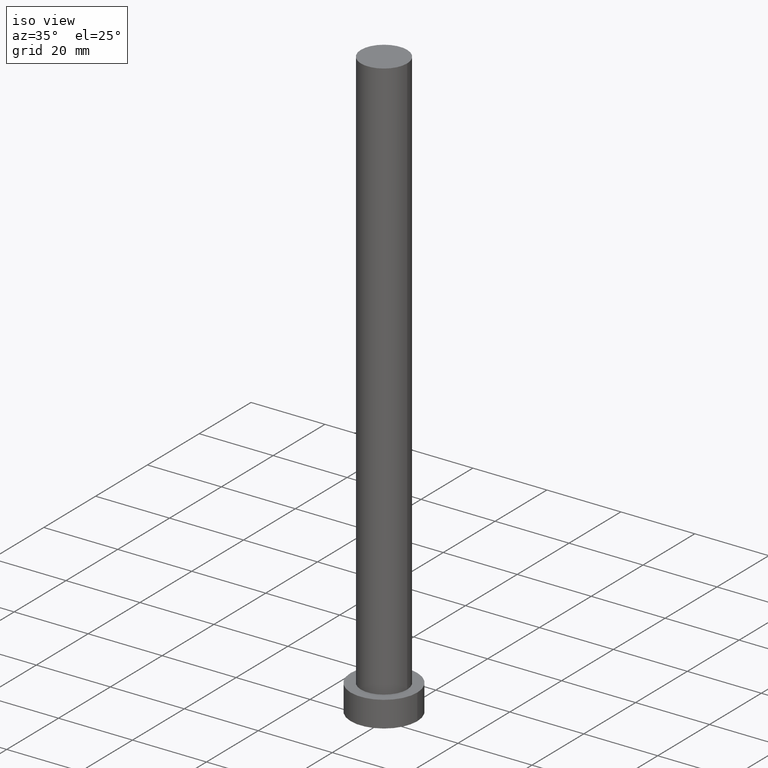
[diagram: clean part render]
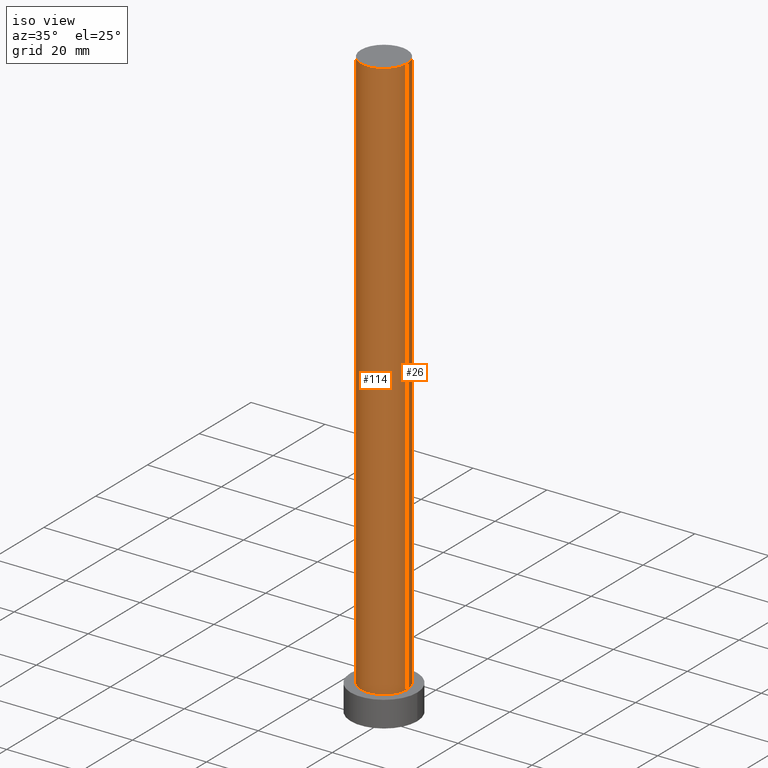
[diagram: same view with one multi-face feature highlighted, each face labeled with its STEP entity id]
A machine part, iso view. The highlighted faces form ONE feature: a constant-radius fillet chain: 2 tangent blend faces with common blend radius 6.25 mm. The faces share edges in the B-rep.
Their STEP definitions:
[1] entity #114 (Cylinder):
#27 = EDGE_CURVE ( 'NONE', #183, #52, #145, .T. ) ;
#28 = LINE ( 'NONE', #227, #153 ) ;
#29 = AXIS2_PLACEMENT_3D ( 'NONE', #182, #207, #106 ) ;
#33 = DIRECTION ( 'NONE',  ( -0.000000000000000000, -0.000000000000000000, -1.000000000000000000 ) ) ;
#37 = EDGE_CURVE ( 'NONE', #230, #211, #136, .T. ) ;
#52 = VERTEX_POINT ( 'NONE', #244 ) ;
#59 = FACE_OUTER_BOUND ( 'NONE', #245, .T. ) ;
#62 = DIRECTION ( 'NONE',  ( 0.000000000000000000, 0.000000000000000000, 1.000000000000000000 ) ) ;
#66 = ORIENTED_EDGE ( 'NONE', *, *, #223, .T. ) ;
#100 = CARTESIAN_POINT ( 'NONE',  ( -6.250000000000000000, 0.000000000000000000, 160.0000000000000000 ) ) ;
#106 = DIRECTION ( 'NONE',  ( 1.000000000000000000, 0.000000000000000000, 0.000000000000000000 ) ) ;
#107 = ORIENTED_EDGE ( 'NONE', *, *, #37, .T. ) ;
#114 = ADVANCED_FACE ( 'NONE', ( #59 ), #187, .T. ) ;
#124 = DIRECTION ( 'NONE',  ( 1.000000000000000000, 0.000000000000000000, 0.000000000000000000 ) ) ;
#126 = DIRECTION ( 'NONE',  ( -1.000000000000000000, 0.000000000000000000, 0.000000000000000000 ) ) ;
#132 = AXIS2_PLACEMENT_3D ( 'NONE', #212, #62, #124 ) ;
#133 = CARTESIAN_POINT ( 'NONE',  ( 6.250000000000000000, 7.654042494670957606E-16, 7.000000000000000000 ) ) ;
#136 = CIRCLE ( 'NONE', #29, 6.250000000000000000 ) ;
#139 = CARTESIAN_POINT ( 'NONE',  ( 0.000000000000000000, 0.000000000000000000, 160.0000000000000000 ) ) ;
#145 = CIRCLE ( 'NONE', #132, 6.250000000000000000 ) ;
#153 = VECTOR ( 'NONE', #33, 1000.000000000000000 ) ;
#154 = AXIS2_PLACEMENT_3D ( 'NONE', #139, #177, #126 ) ;
#156 = VECTOR ( 'NONE', #181, 1000.000000000000000 ) ;
#162 = ORIENTED_EDGE ( 'NONE', *, *, #27, .F. ) ;
#177 = DIRECTION ( 'NONE',  ( -0.000000000000000000, -0.000000000000000000, -1.000000000000000000 ) ) ;
#181 = DIRECTION ( 'NONE',  ( -0.000000000000000000, -0.000000000000000000, -1.000000000000000000 ) ) ;
#182 = CARTESIAN_POINT ( 'NONE',  ( 0.000000000000000000, 0.000000000000000000, 7.000000000000000000 ) ) ;
#183 = VERTEX_POINT ( 'NONE', #195 ) ;
#187 = CYLINDRICAL_SURFACE ( 'NONE', #154, 6.250000000000000000 ) ;
#195 = CARTESIAN_POINT ( 'NONE',  ( -6.250000000000000000, 0.000000000000000000, 160.0000000000000000 ) ) ;
#207 = DIRECTION ( 'NONE',  ( 0.000000000000000000, 0.000000000000000000, 1.000000000000000000 ) ) ;
#211 = VERTEX_POINT ( 'NONE', #133 ) ;
#212 = CARTESIAN_POINT ( 'NONE',  ( 0.000000000000000000, 0.000000000000000000, 160.0000000000000000 ) ) ;
#223 = EDGE_CURVE ( 'NONE', #183, #230, #246, .T. ) ;
#227 = CARTESIAN_POINT ( 'NONE',  ( 6.250000000000000000, 7.654042494670957606E-16, 160.0000000000000000 ) ) ;
#230 = VERTEX_POINT ( 'NONE', #248 ) ;
#233 = EDGE_CURVE ( 'NONE', #52, #211, #28, .T. ) ;
#244 = CARTESIAN_POINT ( 'NONE',  ( 6.250000000000000000, 7.654042494670957606E-16, 160.0000000000000000 ) ) ;
#245 = EDGE_LOOP ( 'NONE', ( #250, #162, #66, #107 ) ) ;
#246 = LINE ( 'NONE', #100, #156 ) ;
#248 = CARTESIAN_POINT ( 'NONE',  ( -6.250000000000000000, 0.000000000000000000, 7.000000000000000000 ) ) ;
#250 = ORIENTED_EDGE ( 'NONE', *, *, #233, .F. ) ;
[2] entity #26 (Cylinder):
#1 = EDGE_CURVE ( 'NONE', #211, #230, #2, .T. ) ;
#2 = CIRCLE ( 'NONE', #23, 6.250000000000000000 ) ;
#21 = CARTESIAN_POINT ( 'NONE',  ( 0.000000000000000000, 0.000000000000000000, 160.0000000000000000 ) ) ;
#23 = AXIS2_PLACEMENT_3D ( 'NONE', #236, #41, #191 ) ;
#24 = EDGE_LOOP ( 'NONE', ( #251, #68, #54, #80 ) ) ;
#26 = ADVANCED_FACE ( 'NONE', ( #111 ), #232, .T. ) ;
#28 = LINE ( 'NONE', #227, #153 ) ;
#33 = DIRECTION ( 'NONE',  ( -0.000000000000000000, -0.000000000000000000, -1.000000000000000000 ) ) ;
#40 = AXIS2_PLACEMENT_3D ( 'NONE', #152, #42, #56 ) ;
#41 = DIRECTION ( 'NONE',  ( 0.000000000000000000, 0.000000000000000000, 1.000000000000000000 ) ) ;
#42 = DIRECTION ( 'NONE',  ( 0.000000000000000000, 0.000000000000000000, 1.000000000000000000 ) ) ;
#52 = VERTEX_POINT ( 'NONE', #244 ) ;
#54 = ORIENTED_EDGE ( 'NONE', *, *, #1, .T. ) ;
#56 = DIRECTION ( 'NONE',  ( 1.000000000000000000, 0.000000000000000000, 0.000000000000000000 ) ) ;
#68 = ORIENTED_EDGE ( 'NONE', *, *, #233, .T. ) ;
#80 = ORIENTED_EDGE ( 'NONE', *, *, #223, .F. ) ;
#92 = AXIS2_PLACEMENT_3D ( 'NONE', #21, #96, #240 ) ;
#96 = DIRECTION ( 'NONE',  ( -0.000000000000000000, -0.000000000000000000, -1.000000000000000000 ) ) ;
#100 = CARTESIAN_POINT ( 'NONE',  ( -6.250000000000000000, 0.000000000000000000, 160.0000000000000000 ) ) ;
#111 = FACE_OUTER_BOUND ( 'NONE', #24, .T. ) ;
#113 = CIRCLE ( 'NONE', #40, 6.250000000000000000 ) ;
#133 = CARTESIAN_POINT ( 'NONE',  ( 6.250000000000000000, 7.654042494670957606E-16, 7.000000000000000000 ) ) ;
#152 = CARTESIAN_POINT ( 'NONE',  ( 0.000000000000000000, 0.000000000000000000, 160.0000000000000000 ) ) ;
#153 = VECTOR ( 'NONE', #33, 1000.000000000000000 ) ;
#156 = VECTOR ( 'NONE', #181, 1000.000000000000000 ) ;
#181 = DIRECTION ( 'NONE',  ( -0.000000000000000000, -0.000000000000000000, -1.000000000000000000 ) ) ;
#183 = VERTEX_POINT ( 'NONE', #195 ) ;
#191 = DIRECTION ( 'NONE',  ( 1.000000000000000000, 0.000000000000000000, 0.000000000000000000 ) ) ;
#195 = CARTESIAN_POINT ( 'NONE',  ( -6.250000000000000000, 0.000000000000000000, 160.0000000000000000 ) ) ;
#203 = EDGE_CURVE ( 'NONE', #52, #183, #113, .T. ) ;
#211 = VERTEX_POINT ( 'NONE', #133 ) ;
#223 = EDGE_CURVE ( 'NONE', #183, #230, #246, .T. ) ;
#227 = CARTESIAN_POINT ( 'NONE',  ( 6.250000000000000000, 7.654042494670957606E-16, 160.0000000000000000 ) ) ;
#230 = VERTEX_POINT ( 'NONE', #248 ) ;
#232 = CYLINDRICAL_SURFACE ( 'NONE', #92, 6.250000000000000000 ) ;
#233 = EDGE_CURVE ( 'NONE', #52, #211, #28, .T. ) ;
#236 = CARTESIAN_POINT ( 'NONE',  ( 0.000000000000000000, 0.000000000000000000, 7.000000000000000000 ) ) ;
#240 = DIRECTION ( 'NONE',  ( -1.000000000000000000, 0.000000000000000000, 0.000000000000000000 ) ) ;
#244 = CARTESIAN_POINT ( 'NONE',  ( 6.250000000000000000, 7.654042494670957606E-16, 160.0000000000000000 ) ) ;
#246 = LINE ( 'NONE', #100, #156 ) ;
#248 = CARTESIAN_POINT ( 'NONE',  ( -6.250000000000000000, 0.000000000000000000, 7.000000000000000000 ) ) ;
#251 = ORIENTED_EDGE ( 'NONE', *, *, #203, .F. ) ;